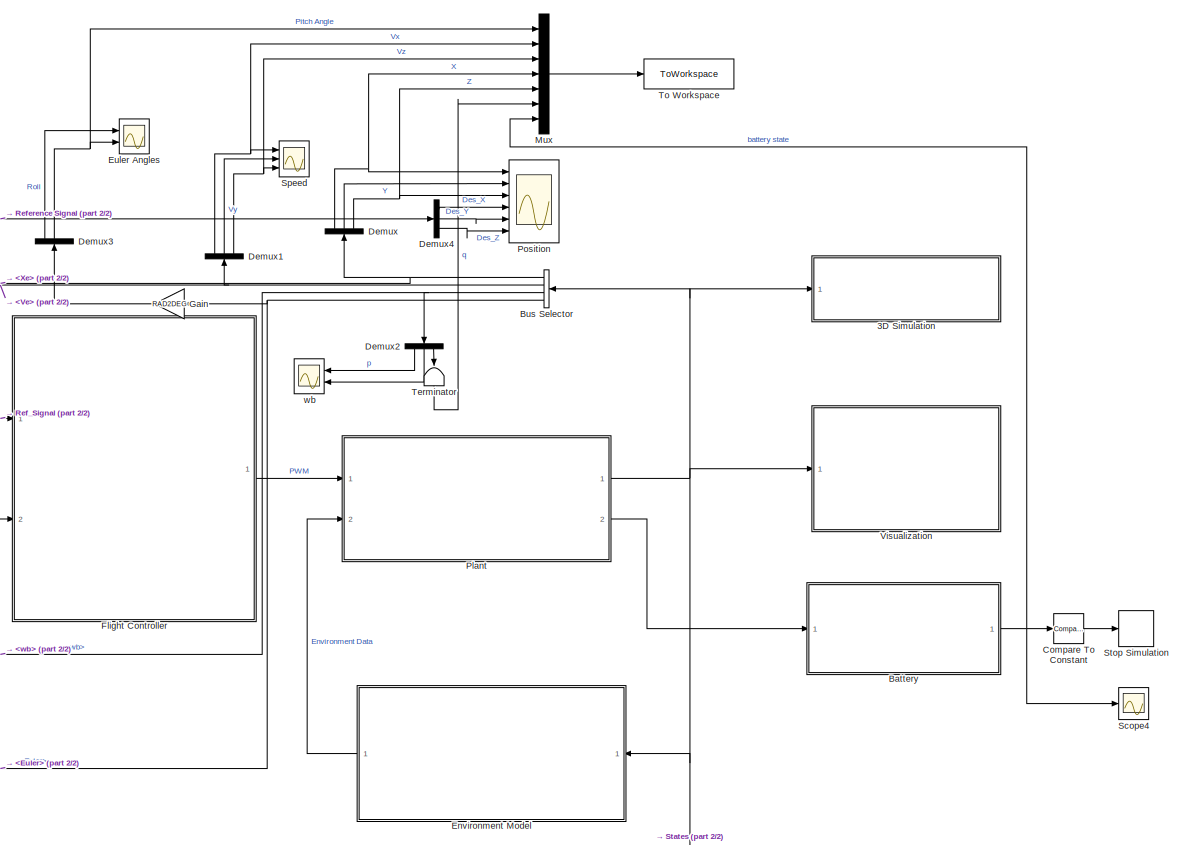
[diagram: root canvas - part 1/2, central region]
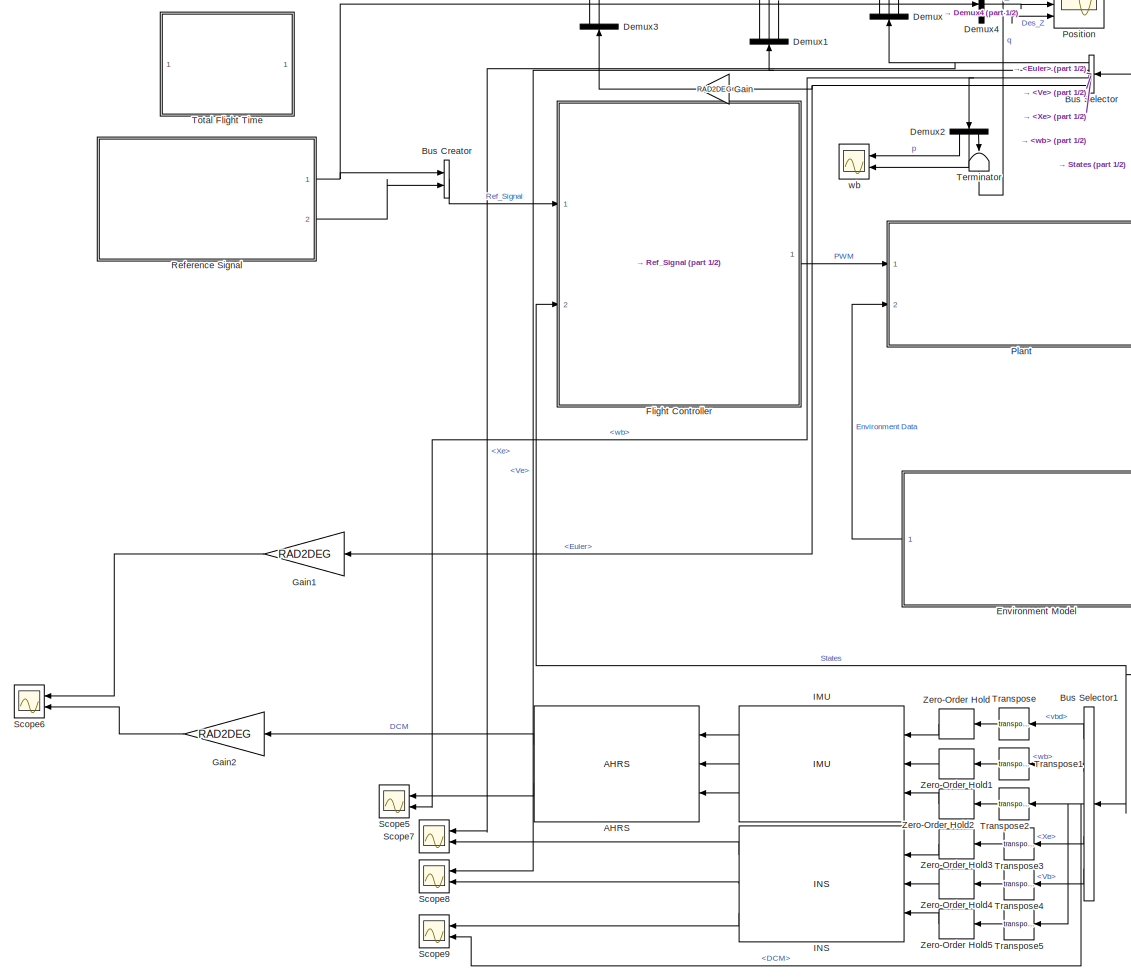
[diagram: root canvas - part 2/2, left side, full height]
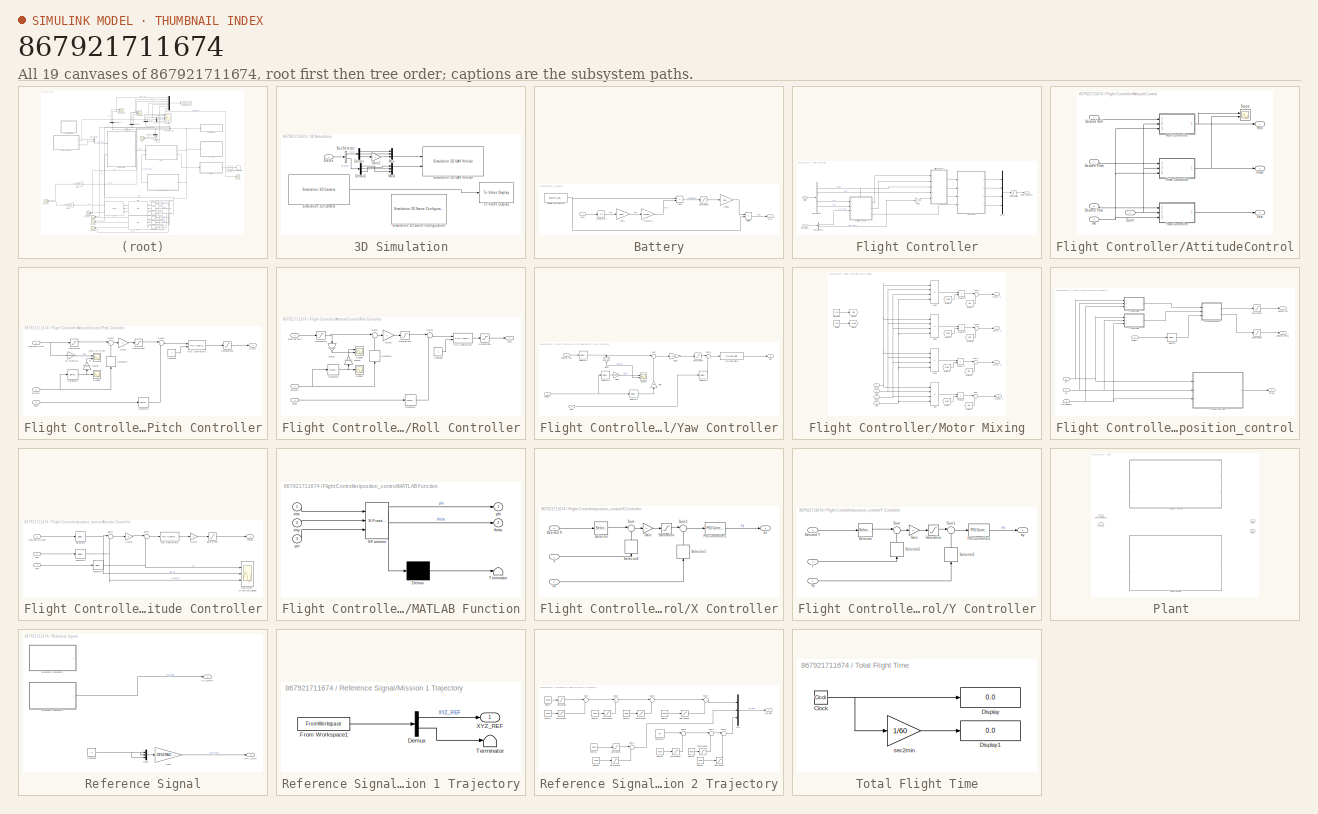
[diagram: thumbnail index - all 19 canvases of the model, root first then tree order]
MODEL slx_867921711674
KIND model
CONFIG AbsTol = auto
CONFIG EnableMultiTasking = off
CONFIG FixedStep = 0.005
CONFIG MaxStep = auto
CONFIG MinStep = auto
CONFIG RelTol = 1e-3
CONFIG SampleTimeConstraint = Unconstrained
CONFIG SolverName = FixedStepAuto
CONFIG StartTime = 0.0
CONFIG StopTime = 75
WORKSPACE source: mxarray member
WORKSPACE Trajectory: Simulink.Bus (value not decoded)
BLOCK [SubSystem] 3D Simulation
  Commented = on
  Ports = [1]
  RequestExecContextInheritance = off
BLOCK [BusSelector] 3D Simulation/Bus Selector
  OutputSignals = Xe,Euler
  Ports = [1, 2]
BLOCK [Demux] 3D Simulation/Demux
  Outputs = 3
  Ports = [1, 3]
BLOCK [Demux] 3D Simulation/Demux1
  Outputs = 3
  Ports = [1, 3]
BLOCK [Gain] 3D Simulation/Gain1
  Gain = -1
BLOCK [Mux] 3D Simulation/Mux
  DisplayOption = bar
  Inputs = 3
  Ports = [3, 1]
BLOCK [Mux] 3D Simulation/Mux1
  DisplayOption = bar
  Inputs = 3
  Ports = [3, 1]
BLOCK [Reference] 3D Simulation/Simulation 3D Camera  REF=sim3dcameralib/Simulation 3D Camera
  Ports = [0, 1]
  Priority = 1
  SourceBlock = sim3dcameralib/Simulation 3D Camera
  SourceProductBaseCode = DR,UV,VE
  SourceType = Simulation 3D Camera
BLOCK [Reference] 3D Simulation/Simulation 3D Scene Configuration  REF=sim3dlib/Simulation 3D Scene Configuration
  Ports = []
  Priority = 0
  SourceBlock = sim3dlib/Simulation 3D Scene Configuration
  SourceProductBaseCode = DR,UV,VE
  SourceType = Simulation 3D Scene Configuration
BLOCK [Reference] 3D Simulation/Simulation 3D UAV Vehicle  REF=uavsim3dlib/Simulation 3D UAV Vehicle
  Ports = [2]
  SourceBlock = uavsim3dlib/Simulation 3D UAV Vehicle
  SourceProductBaseCode = UV
  SourceType = Simulation 3D UAV Vehicle
BLOCK [Inport] 3D Simulation/States
BLOCK [Reference] 3D Simulation/To Video Display  REF=visionsinks/To Video Display
  Ports = [1]
  SourceBlock = visionsinks/To Video Display
  SourceProductBaseCode = VP
  SourceType = To Video Display
BLOCK [Reference] AHRS  REF=mspfiltlib/AHRS
  NameLocation = top
  Ports = [3, 2]
  SourceBlock = mspfiltlib/AHRS
  SourceProductBaseCode = TF,NV
  SourceType = fusion.simulink.ahrsfilter
BLOCK [SubSystem] Battery
  Ports = [1, 1]
  RequestExecContextInheritance = off
BLOCK [Constant] Battery/10000 mAh battery
  Value = battery_capacity
BLOCK [Gain] Battery/A2mA
  Gain = 1000
BLOCK [Sum] Battery/Add2
  IconShape = rectangular
  Inputs = +-
  Ports = [2, 1]
BLOCK [Inport] Battery/Amp
BLOCK [Product] Battery/Divide
  Inputs = */
  Ports = [2, 1]
BLOCK [Gain] Battery/Gain3
  Gain = 100
BLOCK [Integrator] Battery/Integrator1
  Ports = [1, 1]
BLOCK [Outport] Battery/SOC
BLOCK [Saturate] Battery/Saturation1
  LowerLimit = 0
  UpperLimit = 10000
BLOCK [Gain] Battery/mAs2mAh
  Gain = 1/3600
BLOCK [BusCreator] Bus Creator
  DisplayOption = bar
  InheritFromInputs = on
  Inputs = 2
  Ports = [2, 1]
BLOCK [BusSelector] Bus Selector
  NameLocation = top
  OutputSignals = Xe,Ve,wb,Euler
  Ports = [1, 4]
BLOCK [BusSelector] Bus Selector1
  NameLocation = top
  OutputSignals = vbd,wb,DCM,Xe,Vb
  Ports = [1, 5]
BLOCK [Reference] Compare To Constant  REF=simulink/Logic and Bit
Operations/Compare
To Constant
  Ports = [1, 1]
  SourceBlock = simulink/Logic and Bit\nOperations/Compare\nTo Constant
  SourceProductBaseCode = SL
  SourceType = Compare To Constant
BLOCK [Demux] Demux
  NameLocation = right
  Outputs = 3
  Ports = [1, 3]
BLOCK [Demux] Demux1
  NameLocation = right
  Outputs = 3
  Ports = [1, 3]
BLOCK [Demux] Demux2
  NameLocation = left
  Outputs = 3
  Ports = [1, 3]
BLOCK [Demux] Demux3
  NameLocation = right
  Outputs = 3
  Ports = [1, 3]
BLOCK [Demux] Demux4
  Outputs = 3
  Ports = [1, 3]
BLOCK [SubSystem] Environment Model
  NameLocation = top
  Ports = [1, 1]
  ReferencedSubsystem = Environment_Model
  RequestExecContextInheritance = off
BLOCK [Scope] Euler Angles
  Floating = off
  NumInputPorts = 2
  Ports = [2]
  ScopeSpecificationString = Simulink.scopes.TimeScopeBlockCfg('CurrentConfiguration', extmgr.ConfigurationSet(extmgr.Configuration('Core','General UI',true),extmgr.Configuration('Core','Source UI',true),extmgr.Configuration('Sources','WiredSimulink',true,'DataLoggingVariableName','ScopeData5'),extmgr.Configuration('Visuals','Time Domain',true,'SerializedDisplays',{struct('MinYLimReal','-22.55668','MaxYLimReal','19.10329','YL...<+2040ch>
BLOCK [SubSystem] Flight Controller
  Ports = [2, 1]
  RequestExecContextInheritance = off
BLOCK [SubSystem] Flight Controller/AttitudeControl
  Ports = [5, 3]
  RequestExecContextInheritance = off
BLOCK [Inport] Flight Controller/AttitudeControl/Desired Pitch
  Port = 2
BLOCK [Inport] Flight Controller/AttitudeControl/Desired Roll
BLOCK [Inport] Flight Controller/AttitudeControl/Desired Yaw
  Port = 5
BLOCK [Inport] Flight Controller/AttitudeControl/Euler
  Port = 3
BLOCK [Outport] Flight Controller/AttitudeControl/Pitch
  Port = 2
BLOCK [SubSystem] Flight Controller/AttitudeControl/Pitch Controller
  Ports = [3, 1]
  RequestExecContextInheritance = off
BLOCK [Inport] Flight Controller/AttitudeControl/Pitch Controller/<Euler>
  Port = 2
BLOCK [Inport] Flight Controller/AttitudeControl/Pitch Controller/<wb>
  Port = 3
BLOCK [Constant] Flight Controller/AttitudeControl/Pitch Controller/Constant
BLOCK [Scope] Flight Controller/AttitudeControl/Pitch Controller/Des//Act Pitch
  Floating = off
  NumInputPorts = 2
  Ports = [2]
  ScopeSpecificationString = Simulink.scopes.TimeScopeBlockCfg('CurrentConfiguration', extmgr.ConfigurationSet(extmgr.Configuration('Core','General UI',true),extmgr.Configuration('Core','Source UI',true),extmgr.Configuration('Sources','WiredSimulink',true,'DataLoggingVariableName','ScopeData6'),extmgr.Configuration('Visuals','Time Domain',true,'SerializedDisplays',{struct('MinYLimReal','-1.5','MaxYLimReal','13.50001','YLabelR...<+1437ch>
BLOCK [Inport] Flight Controller/AttitudeControl/Pitch Controller/Desired Pitch
BLOCK [Gain] Flight Controller/AttitudeControl/Pitch Controller/Gain2
  Gain = 7
BLOCK [Gain] Flight Controller/AttitudeControl/Pitch Controller/Gain3
  Gain = RAD2DEG
  NameLocation = right
BLOCK [Reference] Flight Controller/AttitudeControl/Pitch Controller/PID Controller1  REF=pid_lib/PID Controller
  Ports = [2, 1]
  SourceBlock = pid_lib/PID Controller
  SourceProductBaseCode = SL
  SourceType = PID 1dof
BLOCK [Outport] Flight Controller/AttitudeControl/Pitch Controller/Pitch
BLOCK [Gain] Flight Controller/AttitudeControl/Pitch Controller/RAD2DEG
  Gain = RAD2DEG
BLOCK [Saturate] Flight Controller/AttitudeControl/Pitch Controller/Saturation
  LowerLimit = -35*DEG2RAD
  UpperLimit = 35*DEG2RAD
BLOCK [Saturate] Flight Controller/AttitudeControl/Pitch Controller/Saturation1
  LowerLimit = -1
  UpperLimit = 1
BLOCK [Saturate] Flight Controller/AttitudeControl/Pitch Controller/Saturation4
  LowerLimit = -250
  UpperLimit = 250
BLOCK [Scope] Flight Controller/AttitudeControl/Pitch Controller/Scope1
  Floating = off
  NumInputPorts = 1
  Ports = [1]
  ScopeSpecificationString = Simulink.scopes.TimeScopeBlockCfg('CurrentConfiguration', extmgr.ConfigurationSet(extmgr.Configuration('Core','General UI',true),extmgr.Configuration('Core','Source UI',true),extmgr.Configuration('Sources','WiredSimulink',true,'DataLoggingVariableName','ScopeData1'),extmgr.Configuration('Visuals','Time Domain',true,'SerializedDisplays',{struct('MinYLimReal','-0.000000000000000042','MaxYLimReal','0...<+1546ch>
BLOCK [Selector] Flight Controller/AttitudeControl/Pitch Controller/Selector2
  IndexOptions = Index vector (dialog)
  Indices = [2]
  InputPortWidth = 3
  OutputSizes = 1
  Ports = [1, 1]
BLOCK [Selector] Flight Controller/AttitudeControl/Pitch Controller/Selector3
  IndexOptions = Index vector (dialog)
  Indices = [2]
  InputPortWidth = 3
  OutputSizes = 1
  Ports = [1, 1]
BLOCK [Selector] Flight Controller/AttitudeControl/Pitch Controller/Selector4
  IndexOptions = Index vector (dialog)
  Indices = [2]
  InputPortWidth = 3
  NameLocation = right
  OutputSizes = 1
  Ports = [1, 1]
BLOCK [Sum] Flight Controller/AttitudeControl/Pitch Controller/Sum2
  Inputs = |+-
  Ports = [2, 1]
BLOCK [Sum] Flight Controller/AttitudeControl/Pitch Controller/Sum3
  Inputs = |+-
  Ports = [2, 1]
BLOCK [Outport] Flight Controller/AttitudeControl/Roll
BLOCK [SubSystem] Flight Controller/AttitudeControl/Roll Controller
  Ports = [3, 1]
  RequestExecContextInheritance = off
BLOCK [Inport] Flight Controller/AttitudeControl/Roll Controller/<Euler>
  Port = 2
BLOCK [Inport] Flight Controller/AttitudeControl/Roll Controller/<wb>
  Port = 3
BLOCK [Constant] Flight Controller/AttitudeControl/Roll Controller/Constant
BLOCK [Inport] Flight Controller/AttitudeControl/Roll Controller/Desired Roll
BLOCK [Gain] Flight Controller/AttitudeControl/Roll Controller/Gain1
  Gain = RAD2DEG
  NameLocation = left
BLOCK [Gain] Flight Controller/AttitudeControl/Roll Controller/Gain2
  Gain = 7
BLOCK [Gain] Flight Controller/AttitudeControl/Roll Controller/Gain3
  Gain = RAD2DEG
  NameLocation = right
BLOCK [Reference] Flight Controller/AttitudeControl/Roll Controller/PID Controller1  REF=pid_lib/PID Controller
  Ports = [2, 1]
  SourceBlock = pid_lib/PID Controller
  SourceProductBaseCode = SL
  SourceType = PID 1dof
BLOCK [Outport] Flight Controller/AttitudeControl/Roll Controller/Roll
BLOCK [Saturate] Flight Controller/AttitudeControl/Roll Controller/Saturation
  LowerLimit = -35*DEG2RAD
  UpperLimit = 35*DEG2RAD
BLOCK [Saturate] Flight Controller/AttitudeControl/Roll Controller/Saturation1
  LowerLimit = -1
  UpperLimit = 1
BLOCK [Saturate] Flight Controller/AttitudeControl/Roll Controller/Saturation4
  LowerLimit = -250
  UpperLimit = 250
BLOCK [Scope] Flight Controller/AttitudeControl/Roll Controller/Scope1
  Floating = off
  NumInputPorts = 1
  Ports = [1]
  ScopeSpecificationString = Simulink.scopes.TimeScopeBlockCfg('CurrentConfiguration', extmgr.ConfigurationSet(extmgr.Configuration('Core','General UI',true),extmgr.Configuration('Core','Source UI',true),extmgr.Configuration('Sources','WiredSimulink',true,'DataLoggingVariableName','ScopeData1'),extmgr.Configuration('Visuals','Time Domain',true,'SerializedDisplays',{struct('MinYLimReal','-0.01856','MaxYLimReal','0.01527','YLab...<+1442ch>
BLOCK [Scope] Flight Controller/AttitudeControl/Roll Controller/Scope2
  Floating = off
  NumInputPorts = 2
  Ports = [2]
  ScopeSpecificationString = Simulink.scopes.TimeScopeBlockCfg('CurrentConfiguration', extmgr.ConfigurationSet(extmgr.Configuration('Core','General UI',true),extmgr.Configuration('Core','Source UI',true),extmgr.Configuration('Sources','WiredSimulink',true,'DataLoggingVariableName','ScopeData6'),extmgr.Configuration('Visuals','Time Domain',true,'SerializedDisplays',{struct('MinYLimReal','-1.50563','MaxYLimReal','13.55069','YLa...<+1499ch>
BLOCK [Selector] Flight Controller/AttitudeControl/Roll Controller/Selector2
  IndexOptions = Index vector (dialog)
  Indices = [1]
  InputPortWidth = 3
  OutputSizes = 1
  Ports = [1, 1]
BLOCK [Selector] Flight Controller/AttitudeControl/Roll Controller/Selector3
  IndexOptions = Index vector (dialog)
  Indices = [1]
  InputPortWidth = 3
  OutputSizes = 1
  Ports = [1, 1]
BLOCK [Selector] Flight Controller/AttitudeControl/Roll Controller/Selector4
  IndexOptions = Index vector (dialog)
  Indices = [1]
  InputPortWidth = 3
  NameLocation = right
  OutputSizes = 1
  Ports = [1, 1]
BLOCK [Sum] Flight Controller/AttitudeControl/Roll Controller/Sum2
  Inputs = |+-
  Ports = [2, 1]
BLOCK [Sum] Flight Controller/AttitudeControl/Roll Controller/Sum3
  Inputs = |+-
  Ports = [2, 1]
BLOCK [Scope] Flight Controller/AttitudeControl/Scope
  Floating = off
  NumInputPorts = 2
  Ports = [2]
  ScopeSpecificationString = Simulink.scopes.TimeScopeBlockCfg('CurrentConfiguration', extmgr.ConfigurationSet(extmgr.Configuration('Core','General UI',true),extmgr.Configuration('Core','Source UI',true),extmgr.Configuration('Sources','WiredSimulink',true,'DataLoggingVariableName','ScopeData5'),extmgr.Configuration('Visuals','Time Domain',true,'SerializedDisplays',{struct('MinYLimReal','-1.25','MaxYLimReal','1.25','YLabelReal...<+1430ch>
BLOCK [Outport] Flight Controller/AttitudeControl/Yaw
  Port = 3
BLOCK [SubSystem] Flight Controller/AttitudeControl/Yaw Controller
  Ports = [3, 1]
  RequestExecContextInheritance = off
BLOCK [Inport] Flight Controller/AttitudeControl/Yaw Controller/<Euler>
  Port = 2
BLOCK [Inport] Flight Controller/AttitudeControl/Yaw Controller/<wb>
  Port = 3
BLOCK [Inport] Flight Controller/AttitudeControl/Yaw Controller/Desired Yaw
BLOCK [Gain] Flight Controller/AttitudeControl/Yaw Controller/Gain
  Gain = 1/4
  NameLocation = right
BLOCK [Gain] Flight Controller/AttitudeControl/Yaw Controller/Gain1
  Gain = 3.25
BLOCK [Gain] Flight Controller/AttitudeControl/Yaw Controller/Gain3
  Gain = RAD2DEG
BLOCK [Gain] Flight Controller/AttitudeControl/Yaw Controller/Gain4
  Gain = RAD2DEG
  NameLocation = left
BLOCK [Reference] Flight Controller/AttitudeControl/Yaw Controller/PID Controller1  REF=pid_lib/PID Controller
  Ports = [1, 1]
  SourceBlock = pid_lib/PID Controller
  SourceProductBaseCode = SL
  SourceType = PID 1dof
BLOCK [Saturate] Flight Controller/AttitudeControl/Yaw Controller/Saturation4
  LowerLimit = -250
  UpperLimit = 250
BLOCK [Scope] Flight Controller/AttitudeControl/Yaw Controller/Scope
  Floating = off
  NumInputPorts = 2
  Ports = [2]
  ScopeSpecificationString = Simulink.scopes.TimeScopeBlockCfg('CurrentConfiguration', extmgr.ConfigurationSet(extmgr.Configuration('Core','General UI',true),extmgr.Configuration('Core','Source UI',true),extmgr.Configuration('Sources','WiredSimulink',true,'DataLoggingVariableName','ScopeData1'),extmgr.Configuration('Visuals','Time Domain',true,'SerializedDisplays',{struct('MinYLimReal','-224.8492','MaxYLimReal','224.93232','Y...<+2071ch>
BLOCK [Selector] Flight Controller/AttitudeControl/Yaw Controller/Selector1
  IndexOptions = Index vector (dialog)
  Indices = [3]
  InputPortWidth = 3
  OutputSizes = 1
  Ports = [1, 1]
BLOCK [Selector] Flight Controller/AttitudeControl/Yaw Controller/Selector2
  IndexOptions = Index vector (dialog)
  Indices = [3]
  InputPortWidth = 3
  OutputSizes = 1
  Ports = [1, 1]
BLOCK [Selector] Flight Controller/AttitudeControl/Yaw Controller/Selector3
  IndexOptions = Index vector (dialog)
  Indices = [3]
  InputPortWidth = 3
  OutputSizes = 1
  Ports = [1, 1]
BLOCK [Selector] Flight Controller/AttitudeControl/Yaw Controller/Selector4
  IndexOptions = Index vector (dialog)
  Indices = [3]
  InputPortWidth = 3
  OutputSizes = 1
  Ports = [1, 1]
BLOCK [Sum] Flight Controller/AttitudeControl/Yaw Controller/Sum
  Inputs = |+-
  Ports = [2, 1]
BLOCK [Sum] Flight Controller/AttitudeControl/Yaw Controller/Sum3
  Inputs = |+-
  Ports = [2, 1]
BLOCK [Outport] Flight Controller/AttitudeControl/Yaw Controller/Yaw
BLOCK [Inport] Flight Controller/AttitudeControl/wb
  Port = 4
BLOCK [BusSelector] Flight Controller/Bus Selector
  OutputSignals = Euler,wb,Xe,Ve
  Ports = [1, 4]
BLOCK [BusSelector] Flight Controller/Bus Selector2
  OutputSignals = XYZ_REF,RPY_REF
  Ports = [1, 2]
BLOCK [Gain] Flight Controller/Gain2
BLOCK [Outport] Flight Controller/Motor Commands
  VectorParamsAs1DForOutWhenUnconnected = off
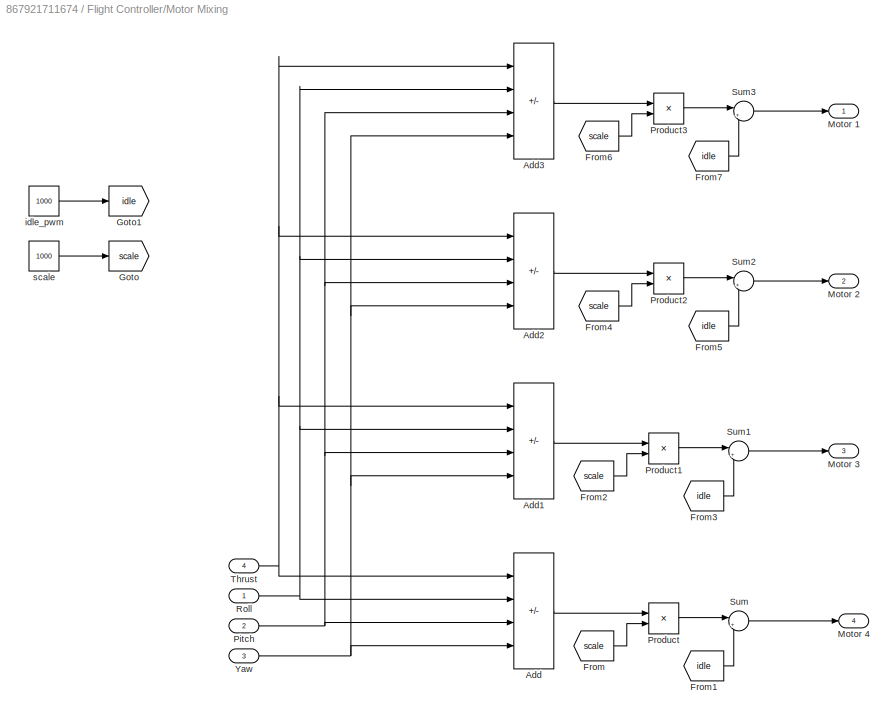
BLOCK [SubSystem] Flight Controller/Motor Mixing
  Ports = [4, 4]
  RequestExecContextInheritance = off
BLOCK [Sum] Flight Controller/Motor Mixing/Add
  IconShape = rectangular
  Inputs = +-+-
  Ports = [4, 1]
BLOCK [Sum] Flight Controller/Motor Mixing/Add1
  IconShape = rectangular
  Inputs = +++-
  Ports = [4, 1]
BLOCK [Sum] Flight Controller/Motor Mixing/Add2
  IconShape = rectangular
  Inputs = ++-+
  Ports = [4, 1]
BLOCK [Sum] Flight Controller/Motor Mixing/Add3
  IconShape = rectangular
  Inputs = +-++
  Ports = [4, 1]
BLOCK [From] Flight Controller/Motor Mixing/From
  GotoTag = scale
BLOCK [From] Flight Controller/Motor Mixing/From1
  GotoTag = idle
BLOCK [From] Flight Controller/Motor Mixing/From2
  GotoTag = scale
BLOCK [From] Flight Controller/Motor Mixing/From3
  GotoTag = idle
BLOCK [From] Flight Controller/Motor Mixing/From4
  GotoTag = scale
BLOCK [From] Flight Controller/Motor Mixing/From5
  GotoTag = idle
BLOCK [From] Flight Controller/Motor Mixing/From6
  GotoTag = scale
BLOCK [From] Flight Controller/Motor Mixing/From7
  GotoTag = idle
BLOCK [Goto] Flight Controller/Motor Mixing/Goto
  GotoTag = scale
BLOCK [Goto] Flight Controller/Motor Mixing/Goto1
  GotoTag = idle
BLOCK [Outport] Flight Controller/Motor Mixing/Motor 1
BLOCK [Outport] Flight Controller/Motor Mixing/Motor 2
  Port = 2
BLOCK [Outport] Flight Controller/Motor Mixing/Motor 3
  Port = 3
BLOCK [Outport] Flight Controller/Motor Mixing/Motor 4
  Port = 4
BLOCK [Inport] Flight Controller/Motor Mixing/Pitch
  Port = 2
BLOCK [Product] Flight Controller/Motor Mixing/Product
  Ports = [2, 1]
BLOCK [Product] Flight Controller/Motor Mixing/Product1
  Ports = [2, 1]
BLOCK [Product] Flight Controller/Motor Mixing/Product2
  Ports = [2, 1]
BLOCK [Product] Flight Controller/Motor Mixing/Product3
  Ports = [2, 1]
BLOCK [Inport] Flight Controller/Motor Mixing/Roll
BLOCK [Sum] Flight Controller/Motor Mixing/Sum
  Inputs = |++
  Ports = [2, 1]
BLOCK [Sum] Flight Controller/Motor Mixing/Sum1
  Inputs = |++
  Ports = [2, 1]
BLOCK [Sum] Flight Controller/Motor Mixing/Sum2
  Inputs = |++
  Ports = [2, 1]
BLOCK [Sum] Flight Controller/Motor Mixing/Sum3
  Inputs = |++
  Ports = [2, 1]
BLOCK [Inport] Flight Controller/Motor Mixing/Thrust
  Port = 4
BLOCK [Inport] Flight Controller/Motor Mixing/Yaw
  Port = 3
BLOCK [Constant] Flight Controller/Motor Mixing/idle_pwm
  Value = 1000
BLOCK [Constant] Flight Controller/Motor Mixing/scale
  Value = 1000
BLOCK [Mux] Flight Controller/Mux12
  DisplayOption = bar
  Ports = [4, 1]
BLOCK [Saturate] Flight Controller/Output_Limits1
  LowerLimit = 1000
  UpperLimit = 2000
BLOCK [Inport] Flight Controller/Ref_Signal
BLOCK [Inport] Flight Controller/States
  Port = 2
BLOCK [SubSystem] Flight Controller/position_control
  PortSchema = {"entries":[{"content":{"sides":[{"content":{"connectorIds":["In1","In2","In3"]},"type":"ConnectorPlacement.EquallySpacedRectSide","uuid":"d0109165-871e-4335-ab21-5be3cafcc9e1"},{"content":{"connectorIds":["Out1","Out2","Out3"],"side":"RIGHT"},"type":"ConnectorPlacement.EquallySpacedRectSide","uuid":"3148bff2-fe34-4d74-8ac1-0defe58f08c1"},{"content":{"connectorIds":["In4"],"side":"TOP"},"type":"Co...<+415ch>
  Ports = [4, 3]
  RequestExecContextInheritance = off
BLOCK [Inport] Flight Controller/position_control/<Euler>
  Port = 4
BLOCK [SubSystem] Flight Controller/position_control/Altitude Controller
  Ports = [3, 1]
  RequestExecContextInheritance = off
BLOCK [Inport] Flight Controller/position_control/Altitude Controller/<Ve>
  Port = 2
BLOCK [Inport] Flight Controller/position_control/Altitude Controller/<Xe>
BLOCK [Scope] Flight Controller/position_control/Altitude Controller/Des//Actual_Alt-Vertical_Speed
  Floating = off
  NumInputPorts = 3
  Ports = [3]
  ScopeSpecificationString = Simulink.scopes.TimeScopeBlockCfg('CurrentConfiguration', extmgr.ConfigurationSet(extmgr.Configuration('Core','General UI',true),extmgr.Configuration('Core','Source UI',true),extmgr.Configuration('Sources','WiredSimulink',true,'DataLoggingVariableName','ScopeData1'),extmgr.Configuration('Visuals','Time Domain',true,'SerializedDisplays',{struct('MinYLimReal','-7.62636','MaxYLimReal','0.90197','YLab...<+2091ch>
BLOCK [Inport] Flight Controller/position_control/Altitude Controller/Desired Altitude
  Port = 3
BLOCK [Gain] Flight Controller/position_control/Altitude Controller/Gain2
  Gain = 4
BLOCK [Gain] Flight Controller/position_control/Altitude Controller/Gain3
  Gain = -1
BLOCK [Reference] Flight Controller/position_control/Altitude Controller/PID Controller2  REF=pid_lib/PID Controller
  Ports = [1, 1]
  SourceBlock = pid_lib/PID Controller
  SourceProductBaseCode = SL
  SourceType = PID 1dof
BLOCK [Saturate] Flight Controller/position_control/Altitude Controller/Saturation2
  LowerLimit = 0
  UpperLimit = 1
BLOCK [Selector] Flight Controller/position_control/Altitude Controller/Selector3
  IndexOptions = Index vector (dialog)
  Indices = [3]
  InputPortWidth = 3
  OutputSizes = 1
  Ports = [1, 1]
BLOCK [Selector] Flight Controller/position_control/Altitude Controller/Selector4
  IndexOptions = Index vector (dialog)
  Indices = [3]
  InputPortWidth = 3
  OutputSizes = 1
  Ports = [1, 1]
BLOCK [Selector] Flight Controller/position_control/Altitude Controller/Selector5
  IndexOptions = Index vector (dialog)
  Indices = [3]
  InputPortWidth = 3
  OutputSizes = 1
  Ports = [1, 1]
BLOCK [Sum] Flight Controller/position_control/Altitude Controller/Sum2
  Inputs = |+-
  Ports = [2, 1]
BLOCK [Sum] Flight Controller/position_control/Altitude Controller/Sum3
  Inputs = |+-
  Ports = [2, 1]
BLOCK [Outport] Flight Controller/position_control/Altitude Controller/Thrust
BLOCK [Outport] Flight Controller/position_control/Desired Phi
BLOCK [Outport] Flight Controller/position_control/Desired Theta
  Port = 2
BLOCK [SubSystem] Flight Controller/position_control/MATLAB Function
  ErrorFcn = Stateflow.Translate.translate
  PermitHierarchicalResolution = ExplicitOnly
  Ports = [3, 2]
  RequestExecContextInheritance = off
  SFBlockType = MATLAB Function
  TreatAsAtomicUnit = on
BLOCK [Demux] Flight Controller/position_control/MATLAB Function/ Demux 
  Outputs = 1
  Ports = [1, 1]
BLOCK [S-Function] Flight Controller/position_control/MATLAB Function/ SFunction 
  EnableBusSupport = on
  FunctionName = sf_sfun
  PortCounts = [3 3]
  Ports = [3, 3]
  SFcnIsStateOwnerBlock = off
  SFunctionDeploymentMode = off
  Tag = Stateflow S-Function 9
BLOCK [Terminator] Flight Controller/position_control/MATLAB Function/ Terminator 
BLOCK [Inport] Flight Controller/position_control/MATLAB Function/eax
BLOCK [Inport] Flight Controller/position_control/MATLAB Function/eay
  Port = 2
BLOCK [Outport] Flight Controller/position_control/MATLAB Function/phi
  VectorParamsAs1DForOutWhenUnconnected = off
BLOCK [Inport] Flight Controller/position_control/MATLAB Function/psi
  Port = 3
BLOCK [Outport] Flight Controller/position_control/MATLAB Function/theta
  Port = 2
  VectorParamsAs1DForOutWhenUnconnected = off
BLOCK [Saturate] Flight Controller/position_control/Saturation1
  LowerLimit = -30*DEG2RAD
  UpperLimit = 30*DEG2RAD
BLOCK [Saturate] Flight Controller/position_control/Saturation2
  LowerLimit = -30*DEG2RAD
  UpperLimit = 30*DEG2RAD
BLOCK [Selector] Flight Controller/position_control/Selector
  IndexOptions = Index vector (dialog)
  Indices = 3
  InputPortWidth = 3
  OutputSizes = 1
  Ports = [1, 1]
BLOCK [Outport] Flight Controller/position_control/Thrust
  Port = 3
  VectorParamsAs1DForOutWhenUnconnected = off
BLOCK [Inport] Flight Controller/position_control/Ve
  Port = 2
BLOCK [SubSystem] Flight Controller/position_control/X Controller
  Ports = [3, 1]
  RequestExecContextInheritance = off
BLOCK [Inport] Flight Controller/position_control/X Controller/Desired X
  Port = 3
BLOCK [Gain] Flight Controller/position_control/X Controller/Gain
BLOCK [Reference] Flight Controller/position_control/X Controller/PID Controller1  REF=pid_lib/PID Controller
  Ports = [1, 1]
  SourceBlock = pid_lib/PID Controller
  SourceProductBaseCode = SL
  SourceType = PID 1dof
BLOCK [Saturate] Flight Controller/position_control/X Controller/Saturation
  LowerLimit = -8
  UpperLimit = 8
BLOCK [Selector] Flight Controller/position_control/X Controller/Selector
  IndexOptions = Index vector (dialog)
  Indices = 1
  InputPortWidth = 3
  OutputSizes = 1
  Ports = [1, 1]
BLOCK [Selector] Flight Controller/position_control/X Controller/Selector1
  IndexOptions = Index vector (dialog)
  Indices = 1
  InputPortWidth = 3
  NameLocation = right
  OutputSizes = 1
  Ports = [1, 1]
BLOCK [Selector] Flight Controller/position_control/X Controller/Selector2
  IndexOptions = Index vector (dialog)
  Indices = 1
  InputPortWidth = 3
  NameLocation = right
  OutputSizes = 1
  Ports = [1, 1]
BLOCK [Sum] Flight Controller/position_control/X Controller/Sum
  Inputs = |+-
  Ports = [2, 1]
BLOCK [Sum] Flight Controller/position_control/X Controller/Sum1
  Inputs = |+-
  Ports = [2, 1]
BLOCK [Inport] Flight Controller/position_control/X Controller/Vx
  Port = 2
BLOCK [Inport] Flight Controller/position_control/X Controller/X
BLOCK [Outport] Flight Controller/position_control/X Controller/ax
BLOCK [Inport] Flight Controller/position_control/XYZ Desired
  Port = 3
BLOCK [Inport] Flight Controller/position_control/Xe
BLOCK [SubSystem] Flight Controller/position_control/Y Controller
  Ports = [3, 1]
  RequestExecContextInheritance = off
BLOCK [Inport] Flight Controller/position_control/Y Controller/Desired Y
  Port = 3
BLOCK [Gain] Flight Controller/position_control/Y Controller/Gain
BLOCK [Reference] Flight Controller/position_control/Y Controller/PID Controller1  REF=pid_lib/PID Controller
  Ports = [1, 1]
  SourceBlock = pid_lib/PID Controller
  SourceProductBaseCode = SL
  SourceType = PID 1dof
BLOCK [Saturate] Flight Controller/position_control/Y Controller/Saturation
  LowerLimit = -8
  UpperLimit = 8
BLOCK [Selector] Flight Controller/position_control/Y Controller/Selector
  IndexOptions = Index vector (dialog)
  Indices = 2
  InputPortWidth = 3
  OutputSizes = 1
  Ports = [1, 1]
BLOCK [Selector] Flight Controller/position_control/Y Controller/Selector2
  IndexOptions = Index vector (dialog)
  Indices = 2
  InputPortWidth = 3
  NameLocation = right
  OutputSizes = 1
  Ports = [1, 1]
BLOCK [Selector] Flight Controller/position_control/Y Controller/Selector5
  IndexOptions = Index vector (dialog)
  Indices = 2
  InputPortWidth = 3
  NameLocation = right
  OutputSizes = 1
  Ports = [1, 1]
BLOCK [Sum] Flight Controller/position_control/Y Controller/Sum
  Inputs = |+-
  Ports = [2, 1]
BLOCK [Sum] Flight Controller/position_control/Y Controller/Sum1
  Inputs = |+-
  Ports = [2, 1]
BLOCK [Inport] Flight Controller/position_control/Y Controller/Vy
  Port = 2
BLOCK [Inport] Flight Controller/position_control/Y Controller/Y
BLOCK [Outport] Flight Controller/position_control/Y Controller/ay
BLOCK [Gain] Gain
  Gain = RAD2DEG
  NameLocation = top
BLOCK [Gain] Gain1
  Gain = RAD2DEG
  NameLocation = top
BLOCK [Gain] Gain2
  Gain = RAD2DEG
  NameLocation = top
BLOCK [Reference] IMU  REF=mspsensorlib/IMU
  NameLocation = top
  Ports = [3, 3]
  SourceBlock = mspsensorlib/IMU
  SourceProductBaseCode = TF,NV
  SourceType = fusion.simulink.imuSensor
BLOCK [Reference] INS  REF=mspsensorlib/INS
  NameLocation = top
  Ports = [3, 3]
  SourceBlock = mspsensorlib/INS
  SourceProductBaseCode = TF,NV
  SourceType = fusion.internal.simulink.insSensor
BLOCK [Mux] Mux
  DisplayOption = bar
  Inputs = 7
  Ports = [7, 1]
BLOCK [SubSystem] Plant 
  Ports = [2, 2]
  RequestExecContextInheritance = off
  Variant = on
  VariantControl = Choice
BLOCK [Outport] Plant /Amper
  Port = 2
BLOCK [Inport] Plant /Env_Bus
  Port = 2
BLOCK [SubSystem] Plant /Linear Airframe
  Ports = [2, 1]
  ReferencedSubsystem = Linear_Airframe
  RequestExecContextInheritance = off
  VariantControl = VSS_Airframe_Linear
BLOCK [Inport] Plant /Motor Commands
BLOCK [SubSystem] Plant /Nonlinear Airframe 
  Ports = [2, 2]
  ReferencedSubsystem = Nonlinear_Plant
  RequestExecContextInheritance = off
  VariantControl = VSS_Airframe_Nonlinear
BLOCK [Outport] Plant /States
BLOCK [Scope] Position
  Floating = off
  NumInputPorts = 6
  Ports = [6]
  ScopeSpecificationString = Simulink.scopes.TimeScopeBlockCfg('CurrentConfiguration', extmgr.ConfigurationSet(extmgr.Configuration('Core','General UI',true),extmgr.Configuration('Core','Source UI',true),extmgr.Configuration('Sources','WiredSimulink',true,'DataLoggingVariableName','ScopeData1'),extmgr.Configuration('Visuals','Time Domain',true,'SerializedDisplays',{struct('MinYLimReal','-19.42786','MaxYLimReal','25.01777','YL...<+4866ch>
BLOCK [SubSystem] Reference Signal
  Ports = [0, 2]
  RequestExecContextInheritance = off
BLOCK [Constant] Reference Signal/Constant
  Value = 0
BLOCK [Gain] Reference Signal/Gain
  Gain = DEG2RAD*0
BLOCK [SubSystem] Reference Signal/Mission 1 Trajectory
  Ports = [0, 1]
  RequestExecContextInheritance = off
BLOCK [Demux] Reference Signal/Mission 1 Trajectory/Demux
  Outputs = 2
  Ports = [1, 2]
BLOCK [FromWorkspace] Reference Signal/Mission 1 Trajectory/From Workspace1
  VariableName = mission1_trajectory
BLOCK [Terminator] Reference Signal/Mission 1 Trajectory/Terminator
BLOCK [Outport] Reference Signal/Mission 1 Trajectory/XYZ_REF
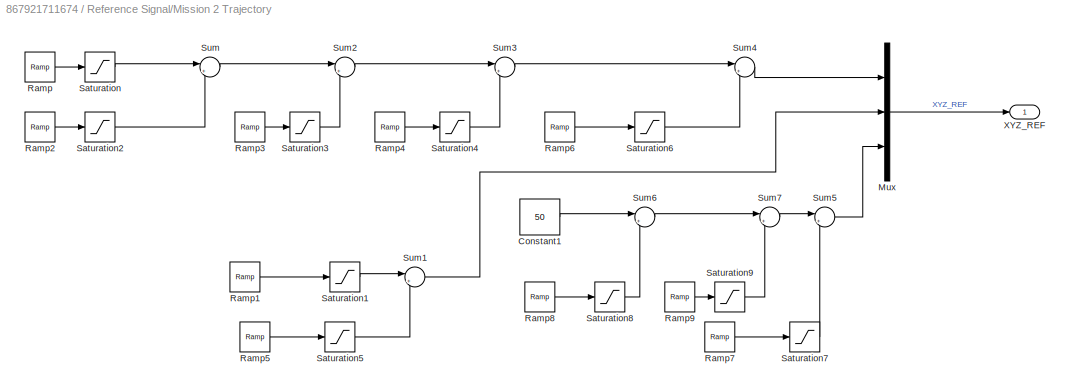
BLOCK [SubSystem] Reference Signal/Mission 2 Trajectory
  Ports = [0, 1]
  RequestExecContextInheritance = off
BLOCK [Constant] Reference Signal/Mission 2 Trajectory/Constant1
  Value = 50
BLOCK [Mux] Reference Signal/Mission 2 Trajectory/Mux
  DisplayOption = bar
  Inputs = 3
  Ports = [3, 1]
BLOCK [Reference] Reference Signal/Mission 2 Trajectory/Ramp  REF=simulink/Sources/Ramp
  Ports = [0, 1]
  SourceBlock = simulink/Sources/Ramp
  SourceProductBaseCode = SL
  SourceType = Ramp
BLOCK [Reference] Reference Signal/Mission 2 Trajectory/Ramp1  REF=simulink/Sources/Ramp
  Ports = [0, 1]
  SourceBlock = simulink/Sources/Ramp
  SourceProductBaseCode = SL
  SourceType = Ramp
BLOCK [Reference] Reference Signal/Mission 2 Trajectory/Ramp2  REF=simulink/Sources/Ramp
  Ports = [0, 1]
  SourceBlock = simulink/Sources/Ramp
  SourceProductBaseCode = SL
  SourceType = Ramp
BLOCK [Reference] Reference Signal/Mission 2 Trajectory/Ramp3  REF=simulink/Sources/Ramp
  Ports = [0, 1]
  SourceBlock = simulink/Sources/Ramp
  SourceProductBaseCode = SL
  SourceType = Ramp
BLOCK [Reference] Reference Signal/Mission 2 Trajectory/Ramp4  REF=simulink/Sources/Ramp
  Ports = [0, 1]
  SourceBlock = simulink/Sources/Ramp
  SourceProductBaseCode = SL
  SourceType = Ramp
BLOCK [Reference] Reference Signal/Mission 2 Trajectory/Ramp5  REF=simulink/Sources/Ramp
  Ports = [0, 1]
  SourceBlock = simulink/Sources/Ramp
  SourceProductBaseCode = SL
  SourceType = Ramp
BLOCK [Reference] Reference Signal/Mission 2 Trajectory/Ramp6  REF=simulink/Sources/Ramp
  Ports = [0, 1]
  SourceBlock = simulink/Sources/Ramp
  SourceProductBaseCode = SL
  SourceType = Ramp
BLOCK [Reference] Reference Signal/Mission 2 Trajectory/Ramp7  REF=simulink/Sources/Ramp
  Ports = [0, 1]
  SourceBlock = simulink/Sources/Ramp
  SourceProductBaseCode = SL
  SourceType = Ramp
BLOCK [Reference] Reference Signal/Mission 2 Trajectory/Ramp8  REF=simulink/Sources/Ramp
  Ports = [0, 1]
  SourceBlock = simulink/Sources/Ramp
  SourceProductBaseCode = SL
  SourceType = Ramp
BLOCK [Reference] Reference Signal/Mission 2 Trajectory/Ramp9  REF=simulink/Sources/Ramp
  Ports = [0, 1]
  SourceBlock = simulink/Sources/Ramp
  SourceProductBaseCode = SL
  SourceType = Ramp
BLOCK [Saturate] Reference Signal/Mission 2 Trajectory/Saturation
  LowerLimit = 0
  UpperLimit = 25
BLOCK [Saturate] Reference Signal/Mission 2 Trajectory/Saturation1
  LowerLimit = 0
  UpperLimit = 25
BLOCK [Saturate] Reference Signal/Mission 2 Trajectory/Saturation2
  LowerLimit = -10
  UpperLimit = 0
BLOCK [Saturate] Reference Signal/Mission 2 Trajectory/Saturation3
  LowerLimit = -15
  UpperLimit = 0
BLOCK [Saturate] Reference Signal/Mission 2 Trajectory/Saturation4
  LowerLimit = -25
  UpperLimit = 0
BLOCK [Saturate] Reference Signal/Mission 2 Trajectory/Saturation5
  LowerLimit = -25
  UpperLimit = 25
BLOCK [Saturate] Reference Signal/Mission 2 Trajectory/Saturation6
  LowerLimit = 0
  UpperLimit = 25
BLOCK [Saturate] Reference Signal/Mission 2 Trajectory/Saturation7
  LowerLimit = -49
  UpperLimit = 0
BLOCK [Saturate] Reference Signal/Mission 2 Trajectory/Saturation8
  LowerLimit = -45
  UpperLimit = 0
BLOCK [Saturate] Reference Signal/Mission 2 Trajectory/Saturation9
  LowerLimit = 0
  UpperLimit = 45
BLOCK [Sum] Reference Signal/Mission 2 Trajectory/Sum
  Inputs = |++
  Ports = [2, 1]
BLOCK [Sum] Reference Signal/Mission 2 Trajectory/Sum1
  Inputs = |++
  Ports = [2, 1]
BLOCK [Sum] Reference Signal/Mission 2 Trajectory/Sum2
  Inputs = |++
  Ports = [2, 1]
BLOCK [Sum] Reference Signal/Mission 2 Trajectory/Sum3
  Inputs = |++
  Ports = [2, 1]
BLOCK [Sum] Reference Signal/Mission 2 Trajectory/Sum4
  Inputs = |++
  Ports = [2, 1]
BLOCK [Sum] Reference Signal/Mission 2 Trajectory/Sum5
  Inputs = |++
  Ports = [2, 1]
BLOCK [Sum] Reference Signal/Mission 2 Trajectory/Sum6
  Inputs = |++
  Ports = [2, 1]
BLOCK [Sum] Reference Signal/Mission 2 Trajectory/Sum7
  Inputs = |++
  Ports = [2, 1]
BLOCK [Outport] Reference Signal/Mission 2 Trajectory/XYZ_REF
BLOCK [Mux] Reference Signal/Mux1
  DisplayOption = bar
  Inputs = 3
  Ports = [3, 1]
BLOCK [Outport] Reference Signal/RPY_REF
  Port = 2
BLOCK [Outport] Reference Signal/XYZ_REF
BLOCK [Scope] Scope4
  Floating = off
  NumInputPorts = 1
  Ports = [1]
  ScopeSpecificationString = Simulink.scopes.TimeScopeBlockCfg('CurrentConfiguration', extmgr.ConfigurationSet(extmgr.Configuration('Core','General UI',true),extmgr.Configuration('Core','Source UI',true),extmgr.Configuration('Sources','WiredSimulink',true,'DataLoggingVariableName','ScopeData6'),extmgr.Configuration('Visuals','Time Domain',true,'SerializedDisplays',{struct('MinYLimReal','16.24977','MaxYLimReal','53.75003','YLa...<+1445ch>
BLOCK [Scope] Scope5
  Floating = off
  NameLocation = top
  NumInputPorts = 2
  Ports = [2]
  ScopeSpecificationString = Simulink.scopes.TimeScopeBlockCfg('CurrentConfiguration', extmgr.ConfigurationSet(extmgr.Configuration('Core','General UI',true),extmgr.Configuration('Core','Source UI',true),extmgr.Configuration('Sources','WiredSimulink',true,'DataLoggingVariableName','ScopeData1'),extmgr.Configuration('Visuals','Time Domain',true,'SerializedDisplays',{struct('MinYLimReal','-1.70676','MaxYLimReal','1.32807','YLab...<+2093ch>
BLOCK [Scope] Scope6
  Floating = off
  NameLocation = top
  NumInputPorts = 2
  Ports = [2]
  ScopeSpecificationString = Simulink.scopes.TimeScopeBlockCfg('CurrentConfiguration', extmgr.ConfigurationSet(extmgr.Configuration('Core','General UI',true),extmgr.Configuration('Core','Source UI',true),extmgr.Configuration('Sources','WiredSimulink',true,'DataLoggingVariableName','ScopeData2'),extmgr.Configuration('Visuals','Time Domain',true,'SerializedDisplays',{struct('MinYLimReal','-1.93286','MaxYLimReal','13.57467','YLa...<+2307ch>
BLOCK [Scope] Scope7
  Floating = off
  NameLocation = top
  NumInputPorts = 2
  Ports = [2]
  ScopeSpecificationString = Simulink.scopes.TimeScopeBlockCfg('CurrentConfiguration', extmgr.ConfigurationSet(extmgr.Configuration('Core','General UI',true),extmgr.Configuration('Core','Source UI',true),extmgr.Configuration('Sources','WiredSimulink',true,'DataLoggingVariableName','ScopeData3'),extmgr.Configuration('Visuals','Time Domain',true,'SerializedDisplays',{struct('MinYLimReal','-120.80639','MaxYLimReal','13.42298','Y...<+2099ch>
BLOCK [Scope] Scope8
  Floating = off
  NameLocation = top
  NumInputPorts = 2
  Ports = [2]
  ScopeSpecificationString = Simulink.scopes.TimeScopeBlockCfg('CurrentConfiguration', extmgr.ConfigurationSet(extmgr.Configuration('Core','General UI',true),extmgr.Configuration('Core','Source UI',true),extmgr.Configuration('Sources','WiredSimulink',true,'DataLoggingVariableName','ScopeData4'),extmgr.Configuration('Visuals','Time Domain',true,'SerializedDisplays',{struct('MinYLimReal','-8.21545','MaxYLimReal','7.49804','YLab...<+2090ch>
BLOCK [Scope] Scope9
  Floating = off
  NameLocation = top
  NumInputPorts = 2
  Ports = [2]
  ScopeSpecificationString = Simulink.scopes.TimeScopeBlockCfg('CurrentConfiguration', extmgr.ConfigurationSet(extmgr.Configuration('Core','General UI',true),extmgr.Configuration('Core','Source UI',true),extmgr.Configuration('Sources','WiredSimulink',true,'DataLoggingVariableName','ScopeData5'),extmgr.Configuration('Visuals','Time Domain',true,'SerializedDisplays',{struct('MinYLimReal','-0.59835','MaxYLimReal','1.17759','YLab...<+2213ch>
BLOCK [Scope] Speed
  Floating = off
  NumInputPorts = 3
  Ports = [3]
  ScopeSpecificationString = Simulink.scopes.TimeScopeBlockCfg('CurrentConfiguration', extmgr.ConfigurationSet(extmgr.Configuration('Core','General UI',true),extmgr.Configuration('Core','Source UI',true),extmgr.Configuration('Sources','WiredSimulink',true,'DataLoggingVariableName','ScopeData3'),extmgr.Configuration('Visuals','Time Domain',true,'SerializedDisplays',{struct('MinYLimReal','-3.79696','MaxYLimReal','3.95466','YLab...<+2725ch>
BLOCK [Stop] Stop Simulation
BLOCK [Terminator] Terminator
  NameLocation = left
BLOCK [ToWorkspace] To Workspace
  FixptAsFi = on
  MaxDataPoints = inf
  Ports = [1]
  SampleTime = -1
  SaveFormat = Timeseries
  VariableName = State_vars
BLOCK [SubSystem] Total Flight Time
  Ports = []
  RequestExecContextInheritance = off
BLOCK [Clock] Total Flight Time/Clock
BLOCK [Display] Total Flight Time/Display
  Decimation = 1
  Ports = [1]
BLOCK [Display] Total Flight Time/Display1
  Decimation = 1
  Ports = [1]
BLOCK [Gain] Total Flight Time/sec2min
  Gain = 1/60
BLOCK [Math] Transpose
  NameLocation = top
  Operator = transpose
  Ports = [1, 1]
BLOCK [Math] Transpose1
  NameLocation = top
  Operator = transpose
  Ports = [1, 1]
BLOCK [Math] Transpose2
  NameLocation = top
  Operator = transpose
  Ports = [1, 1]
BLOCK [Math] Transpose3
  NameLocation = top
  Operator = transpose
  Ports = [1, 1]
BLOCK [Math] Transpose4
  NameLocation = top
  Operator = transpose
  Ports = [1, 1]
BLOCK [Math] Transpose5
  NameLocation = top
  Operator = transpose
  Ports = [1, 1]
BLOCK [SubSystem] Visualization
  Ports = [1]
  ReferencedSubsystem = Flightgear_Visualization_Data_Logging
  RequestExecContextInheritance = off
BLOCK [ZeroOrderHold] Zero-Order Hold
  NameLocation = top
  SampleTime = 0.05
BLOCK [ZeroOrderHold] Zero-Order Hold1
  NameLocation = top
  SampleTime = 0.05
BLOCK [ZeroOrderHold] Zero-Order Hold2
  NameLocation = top
  SampleTime = 0.05
BLOCK [ZeroOrderHold] Zero-Order Hold3
  NameLocation = top
  SampleTime = 0.05
BLOCK [ZeroOrderHold] Zero-Order Hold4
  NameLocation = top
  SampleTime = 0.05
BLOCK [ZeroOrderHold] Zero-Order Hold5
  NameLocation = top
  SampleTime = 0.05
BLOCK [Scope] wb
  Floating = off
  NameLocation = top
  NumInputPorts = 2
  Ports = [2]
  ScopeSpecificationString = Simulink.scopes.TimeScopeBlockCfg('CurrentConfiguration', extmgr.ConfigurationSet(extmgr.Configuration('Core','General UI',true),extmgr.Configuration('Core','Source UI',true),extmgr.Configuration('Sources','WiredSimulink',true,'DataLoggingVariableName','ScopeData4'),extmgr.Configuration('Visuals','Time Domain',true,'SerializedDisplays',{struct('MinYLimReal','-1.65562','MaxYLimReal','1.50207','YLab...<+1995ch>
LINE 3D Simulation/Bus Selector:1 -> 3D Simulation/Demux:1
LINE 3D Simulation/Bus Selector:2 -> 3D Simulation/Demux1:1
LINE 3D Simulation/Demux1:1 -> 3D Simulation/Mux1:3
LINE 3D Simulation/Demux1:2 -> 3D Simulation/Mux1:2
LINE 3D Simulation/Demux1:3 -> 3D Simulation/Mux1:1
LINE 3D Simulation/Demux:1 -> 3D Simulation/Mux:1
LINE 3D Simulation/Demux:2 -> 3D Simulation/Mux:2
LINE 3D Simulation/Demux:3 -> 3D Simulation/Gain1:1
LINE 3D Simulation/Gain1:1 -> 3D Simulation/Mux:3
LINE 3D Simulation/Mux1:1 -> 3D Simulation/Simulation 3D UAV Vehicle:2
LINE 3D Simulation/Mux:1 -> 3D Simulation/Simulation 3D UAV Vehicle:1
LINE 3D Simulation/Simulation 3D Camera:1 -> 3D Simulation/To Video Display:1
LINE 3D Simulation/States:1 -> 3D Simulation/Bus Selector:1
LINE AHRS:1 -> Gain2:1
LINE AHRS:2 -> Scope5:1
NET Battery/10000 mAh battery:1 -> Battery/Add2:1, Battery/Divide:2
LINE Battery/A2mA:1 -> Battery/mAs2mAh:1
LINE Battery/Add2:1 -> Battery/Saturation1:1
LINE Battery/Amp:1 -> Battery/Integrator1:1
LINE Battery/Divide:1 -> Battery/SOC:1
LINE Battery/Gain3:1 -> Battery/Divide:1
LINE Battery/Integrator1:1 -> Battery/A2mA:1
LINE Battery/Saturation1:1 -> Battery/Gain3:1
LINE Battery/mAs2mAh:1 -> Battery/Add2:2
NET Battery:1 -> Compare To Constant:1, Mux:7, Scope4:1
LINE Bus Creator:1 -> Flight Controller:1
LINE Bus Selector1:1 -> Transpose:1
LINE Bus Selector1:2 -> Transpose1:1
NET Bus Selector1:3 -> Scope9:2, Transpose2:1, Transpose5:1
LINE Bus Selector1:4 -> Transpose3:1
LINE Bus Selector1:5 -> Transpose4:1
NET Bus Selector:1 -> Demux:1, Scope7:1
NET Bus Selector:2 -> Demux1:1, Scope8:1
NET Bus Selector:3 -> Demux2:1, Scope5:2
NET Bus Selector:4 -> Gain1:1, Gain:1
LINE Compare To Constant:1 -> Stop Simulation:1
NET Demux1:1 -> Mux:2, Speed:1
LINE Demux1:2 -> Speed:2
NET Demux1:3 -> Mux:3, Speed:3
LINE Demux2:1 -> wb:1
NET Demux2:2 -> Mux:6, wb:2
LINE Demux2:3 -> Terminator:1
LINE Demux3:1 -> Euler Angles:1
NET Demux3:2 -> Euler Angles:2, Mux:1
LINE Demux4:1 -> Position:4
LINE Demux4:2 -> Position:5
LINE Demux4:3 -> Position:6
NET Demux:1 -> Mux:4, Position:1
LINE Demux:2 -> Position:2
NET Demux:3 -> Mux:5, Position:3
LINE Environment Model:1 -> Plant :2
LINE Flight Controller/AttitudeControl/Desired Pitch:1 -> Flight Controller/AttitudeControl/Pitch Controller:1
LINE Flight Controller/AttitudeControl/Desired Roll:1 -> Flight Controller/AttitudeControl/Roll Controller:1
LINE Flight Controller/AttitudeControl/Desired Yaw:1 -> Flight Controller/AttitudeControl/Yaw Controller:1
NET Flight Controller/AttitudeControl/Euler:1 -> Flight Controller/AttitudeControl/Pitch Controller:2, Flight Controller/AttitudeControl/Roll Controller:2, Flight Controller/AttitudeControl/Yaw Controller:2
NET Flight Controller/AttitudeControl/Pitch Controller/<Euler>:1 -> Flight Controller/AttitudeControl/Pitch Controller/Selector2:1, Flight Controller/AttitudeControl/Pitch Controller/Selector4:1
LINE Flight Controller/AttitudeControl/Pitch Controller/<wb>:1 -> Flight Controller/AttitudeControl/Pitch Controller/Selector3:1
LINE Flight Controller/AttitudeControl/Pitch Controller/Constant:1 -> Flight Controller/AttitudeControl/Pitch Controller/PID Controller1:2
NET Flight Controller/AttitudeControl/Pitch Controller/Desired Pitch:1 -> Flight Controller/AttitudeControl/Pitch Controller/RAD2DEG:1, Flight Controller/AttitudeControl/Pitch Controller/Saturation:1
LINE Flight Controller/AttitudeControl/Pitch Controller/Gain2:1 -> Flight Controller/AttitudeControl/Pitch Controller/Saturation4:1
LINE Flight Controller/AttitudeControl/Pitch Controller/Gain3:1 -> Flight Controller/AttitudeControl/Pitch Controller/Des//Act Pitch:2
LINE Flight Controller/AttitudeControl/Pitch Controller/PID Controller1:1 -> Flight Controller/AttitudeControl/Pitch Controller/Saturation1:1
LINE Flight Controller/AttitudeControl/Pitch Controller/RAD2DEG:1 -> Flight Controller/AttitudeControl/Pitch Controller/Des//Act Pitch:1
LINE Flight Controller/AttitudeControl/Pitch Controller/Saturation1:1 -> Flight Controller/AttitudeControl/Pitch Controller/Pitch:1
LINE Flight Controller/AttitudeControl/Pitch Controller/Saturation4:1 -> Flight Controller/AttitudeControl/Pitch Controller/Sum3:1
LINE Flight Controller/AttitudeControl/Pitch Controller/Saturation:1 -> Flight Controller/AttitudeControl/Pitch Controller/Sum2:1
NET Flight Controller/AttitudeControl/Pitch Controller/Selector2:1 -> Flight Controller/AttitudeControl/Pitch Controller/Gain3:1, Flight Controller/AttitudeControl/Pitch Controller/Scope1:1
LINE Flight Controller/AttitudeControl/Pitch Controller/Selector3:1 -> Flight Controller/AttitudeControl/Pitch Controller/Sum3:2
LINE Flight Controller/AttitudeControl/Pitch Controller/Selector4:1 -> Flight Controller/AttitudeControl/Pitch Controller/Sum2:2
LINE Flight Controller/AttitudeControl/Pitch Controller/Sum2:1 -> Flight Controller/AttitudeControl/Pitch Controller/Gain2:1
LINE Flight Controller/AttitudeControl/Pitch Controller/Sum3:1 -> Flight Controller/AttitudeControl/Pitch Controller/PID Controller1:1
NET Flight Controller/AttitudeControl/Pitch Controller:1 -> Flight Controller/AttitudeControl/Pitch:1, Flight Controller/AttitudeControl/Scope:2
NET Flight Controller/AttitudeControl/Roll Controller/<Euler>:1 -> Flight Controller/AttitudeControl/Roll Controller/Selector2:1, Flight Controller/AttitudeControl/Roll Controller/Selector4:1
LINE Flight Controller/AttitudeControl/Roll Controller/<wb>:1 -> Flight Controller/AttitudeControl/Roll Controller/Selector3:1
LINE Flight Controller/AttitudeControl/Roll Controller/Constant:1 -> Flight Controller/AttitudeControl/Roll Controller/PID Controller1:2
LINE Flight Controller/AttitudeControl/Roll Controller/Desired Roll:1 -> Flight Controller/AttitudeControl/Roll Controller/Saturation:1
LINE Flight Controller/AttitudeControl/Roll Controller/Gain1:1 -> Flight Controller/AttitudeControl/Roll Controller/Scope2:2
LINE Flight Controller/AttitudeControl/Roll Controller/Gain2:1 -> Flight Controller/AttitudeControl/Roll Controller/Saturation4:1
LINE Flight Controller/AttitudeControl/Roll Controller/Gain3:1 -> Flight Controller/AttitudeControl/Roll Controller/Scope2:1
LINE Flight Controller/AttitudeControl/Roll Controller/PID Controller1:1 -> Flight Controller/AttitudeControl/Roll Controller/Saturation1:1
LINE Flight Controller/AttitudeControl/Roll Controller/Saturation1:1 -> Flight Controller/AttitudeControl/Roll Controller/Roll:1
LINE Flight Controller/AttitudeControl/Roll Controller/Saturation4:1 -> Flight Controller/AttitudeControl/Roll Controller/Sum3:1
NET Flight Controller/AttitudeControl/Roll Controller/Saturation:1 -> Flight Controller/AttitudeControl/Roll Controller/Gain1:1, Flight Controller/AttitudeControl/Roll Controller/Sum2:1
NET Flight Controller/AttitudeControl/Roll Controller/Selector2:1 -> Flight Controller/AttitudeControl/Roll Controller/Gain3:1, Flight Controller/AttitudeControl/Roll Controller/Scope1:1
LINE Flight Controller/AttitudeControl/Roll Controller/Selector3:1 -> Flight Controller/AttitudeControl/Roll Controller/Sum3:2
LINE Flight Controller/AttitudeControl/Roll Controller/Selector4:1 -> Flight Controller/AttitudeControl/Roll Controller/Sum2:2
LINE Flight Controller/AttitudeControl/Roll Controller/Sum2:1 -> Flight Controller/AttitudeControl/Roll Controller/Gain2:1
LINE Flight Controller/AttitudeControl/Roll Controller/Sum3:1 -> Flight Controller/AttitudeControl/Roll Controller/PID Controller1:1
NET Flight Controller/AttitudeControl/Roll Controller:1 -> Flight Controller/AttitudeControl/Roll:1, Flight Controller/AttitudeControl/Scope:1
NET Flight Controller/AttitudeControl/Yaw Controller/<Euler>:1 -> Flight Controller/AttitudeControl/Yaw Controller/Selector2:1, Flight Controller/AttitudeControl/Yaw Controller/Selector4:1
LINE Flight Controller/AttitudeControl/Yaw Controller/<wb>:1 -> Flight Controller/AttitudeControl/Yaw Controller/Selector3:1
LINE Flight Controller/AttitudeControl/Yaw Controller/Desired Yaw:1 -> Flight Controller/AttitudeControl/Yaw Controller/Selector1:1
LINE Flight Controller/AttitudeControl/Yaw Controller/Gain1:1 -> Flight Controller/AttitudeControl/Yaw Controller/Saturation4:1
LINE Flight Controller/AttitudeControl/Yaw Controller/Gain3:1 -> Flight Controller/AttitudeControl/Yaw Controller/Scope:1
LINE Flight Controller/AttitudeControl/Yaw Controller/Gain4:1 -> Flight Controller/AttitudeControl/Yaw Controller/Scope:2
LINE Flight Controller/AttitudeControl/Yaw Controller/Gain:1 -> Flight Controller/AttitudeControl/Yaw Controller/Sum:2
LINE Flight Controller/AttitudeControl/Yaw Controller/PID Controller1:1 -> Flight Controller/AttitudeControl/Yaw Controller/Yaw:1
LINE Flight Controller/AttitudeControl/Yaw Controller/Saturation4:1 -> Flight Controller/AttitudeControl/Yaw Controller/Sum3:1
NET Flight Controller/AttitudeControl/Yaw Controller/Selector1:1 -> Flight Controller/AttitudeControl/Yaw Controller/Gain4:1, Flight Controller/AttitudeControl/Yaw Controller/Sum:1
LINE Flight Controller/AttitudeControl/Yaw Controller/Selector2:1 -> Flight Controller/AttitudeControl/Yaw Controller/Gain3:1
LINE Flight Controller/AttitudeControl/Yaw Controller/Selector3:1 -> Flight Controller/AttitudeControl/Yaw Controller/Sum3:2
LINE Flight Controller/AttitudeControl/Yaw Controller/Selector4:1 -> Flight Controller/AttitudeControl/Yaw Controller/Gain:1
LINE Flight Controller/AttitudeControl/Yaw Controller/Sum3:1 -> Flight Controller/AttitudeControl/Yaw Controller/PID Controller1:1
LINE Flight Controller/AttitudeControl/Yaw Controller/Sum:1 -> Flight Controller/AttitudeControl/Yaw Controller/Gain1:1
LINE Flight Controller/AttitudeControl/Yaw Controller:1 -> Flight Controller/AttitudeControl/Yaw:1
NET Flight Controller/AttitudeControl/wb:1 -> Flight Controller/AttitudeControl/Pitch Controller:3, Flight Controller/AttitudeControl/Roll Controller:3, Flight Controller/AttitudeControl/Yaw Controller:3
LINE Flight Controller/AttitudeControl:1 -> Flight Controller/Motor Mixing:1
LINE Flight Controller/AttitudeControl:2 -> Flight Controller/Motor Mixing:2
LINE Flight Controller/AttitudeControl:3 -> Flight Controller/Motor Mixing:3
LINE Flight Controller/Bus Selector2:1 -> Flight Controller/position_control:3
LINE Flight Controller/Bus Selector2:2 -> Flight Controller/Gain2:1
NET Flight Controller/Bus Selector:1 -> Flight Controller/AttitudeControl:3, Flight Controller/position_control:4
LINE Flight Controller/Bus Selector:2 -> Flight Controller/AttitudeControl:4
LINE Flight Controller/Bus Selector:3 -> Flight Controller/position_control:1
LINE Flight Controller/Bus Selector:4 -> Flight Controller/position_control:2
LINE Flight Controller/Gain2:1 -> Flight Controller/AttitudeControl:5
LINE Flight Controller/Motor Mixing/Add1:1 -> Flight Controller/Motor Mixing/Product1:1
LINE Flight Controller/Motor Mixing/Add2:1 -> Flight Controller/Motor Mixing/Product2:1
LINE Flight Controller/Motor Mixing/Add3:1 -> Flight Controller/Motor Mixing/Product3:1
LINE Flight Controller/Motor Mixing/Add:1 -> Flight Controller/Motor Mixing/Product:1
LINE Flight Controller/Motor Mixing/From1:1 -> Flight Controller/Motor Mixing/Sum:2
LINE Flight Controller/Motor Mixing/From2:1 -> Flight Controller/Motor Mixing/Product1:2
LINE Flight Controller/Motor Mixing/From3:1 -> Flight Controller/Motor Mixing/Sum1:2
LINE Flight Controller/Motor Mixing/From4:1 -> Flight Controller/Motor Mixing/Product2:2
LINE Flight Controller/Motor Mixing/From5:1 -> Flight Controller/Motor Mixing/Sum2:2
LINE Flight Controller/Motor Mixing/From6:1 -> Flight Controller/Motor Mixing/Product3:2
LINE Flight Controller/Motor Mixing/From7:1 -> Flight Controller/Motor Mixing/Sum3:2
LINE Flight Controller/Motor Mixing/From:1 -> Flight Controller/Motor Mixing/Product:2
NET Flight Controller/Motor Mixing/Pitch:1 -> Flight Controller/Motor Mixing/Add1:3, Flight Controller/Motor Mixing/Add2:3, Flight Controller/Motor Mixing/Add3:3, Flight Controller/Motor Mixing/Add:3
LINE Flight Controller/Motor Mixing/Product1:1 -> Flight Controller/Motor Mixing/Sum1:1
LINE Flight Controller/Motor Mixing/Product2:1 -> Flight Controller/Motor Mixing/Sum2:1
LINE Flight Controller/Motor Mixing/Product3:1 -> Flight Controller/Motor Mixing/Sum3:1
LINE Flight Controller/Motor Mixing/Product:1 -> Flight Controller/Motor Mixing/Sum:1
NET Flight Controller/Motor Mixing/Roll:1 -> Flight Controller/Motor Mixing/Add1:2, Flight Controller/Motor Mixing/Add2:2, Flight Controller/Motor Mixing/Add3:2, Flight Controller/Motor Mixing/Add:2
LINE Flight Controller/Motor Mixing/Sum1:1 -> Flight Controller/Motor Mixing/Motor 3:1
LINE Flight Controller/Motor Mixing/Sum2:1 -> Flight Controller/Motor Mixing/Motor 2:1
LINE Flight Controller/Motor Mixing/Sum3:1 -> Flight Controller/Motor Mixing/Motor 1:1
LINE Flight Controller/Motor Mixing/Sum:1 -> Flight Controller/Motor Mixing/Motor 4:1
NET Flight Controller/Motor Mixing/Thrust:1 -> Flight Controller/Motor Mixing/Add1:1, Flight Controller/Motor Mixing/Add2:1, Flight Controller/Motor Mixing/Add3:1, Flight Controller/Motor Mixing/Add:1
NET Flight Controller/Motor Mixing/Yaw:1 -> Flight Controller/Motor Mixing/Add1:4, Flight Controller/Motor Mixing/Add2:4, Flight Controller/Motor Mixing/Add3:4, Flight Controller/Motor Mixing/Add:4
LINE Flight Controller/Motor Mixing/idle_pwm:1 -> Flight Controller/Motor Mixing/Goto1:1
LINE Flight Controller/Motor Mixing/scale:1 -> Flight Controller/Motor Mixing/Goto:1
LINE Flight Controller/Motor Mixing:1 -> Flight Controller/Mux12:1
LINE Flight Controller/Motor Mixing:2 -> Flight Controller/Mux12:2
LINE Flight Controller/Motor Mixing:3 -> Flight Controller/Mux12:3
LINE Flight Controller/Motor Mixing:4 -> Flight Controller/Mux12:4
LINE Flight Controller/Mux12:1 -> Flight Controller/Output_Limits1:1
LINE Flight Controller/Output_Limits1:1 -> Flight Controller/Motor Commands:1
LINE Flight Controller/Ref_Signal:1 -> Flight Controller/Bus Selector2:1
LINE Flight Controller/States:1 -> Flight Controller/Bus Selector:1
LINE Flight Controller/position_control/<Euler>:1 -> Flight Controller/position_control/Selector:1
LINE Flight Controller/position_control/Altitude Controller/<Ve>:1 -> Flight Controller/position_control/Altitude Controller/Selector4:1
LINE Flight Controller/position_control/Altitude Controller/<Xe>:1 -> Flight Controller/position_control/Altitude Controller/Selector3:1
LINE Flight Controller/position_control/Altitude Controller/Desired Altitude:1 -> Flight Controller/position_control/Altitude Controller/Selector5:1
LINE Flight Controller/position_control/Altitude Controller/Gain2:1 -> Flight Controller/position_control/Altitude Controller/Sum3:1
LINE Flight Controller/position_control/Altitude Controller/Gain3:1 -> Flight Controller/position_control/Altitude Controller/Saturation2:1
LINE Flight Controller/position_control/Altitude Controller/PID Controller2:1 -> Flight Controller/position_control/Altitude Controller/Gain3:1
LINE Flight Controller/position_control/Altitude Controller/Saturation2:1 -> Flight Controller/position_control/Altitude Controller/Thrust:1
NET Flight Controller/position_control/Altitude Controller/Selector3:1 -> Flight Controller/position_control/Altitude Controller/Des//Actual_Alt-Vertical_Speed:3, Flight Controller/position_control/Altitude Controller/Sum2:2
NET Flight Controller/position_control/Altitude Controller/Selector4:1 -> Flight Controller/position_control/Altitude Controller/Des//Actual_Alt-Vertical_Speed:1, Flight Controller/position_control/Altitude Controller/Sum3:2
NET Flight Controller/position_control/Altitude Controller/Selector5:1 -> Flight Controller/position_control/Altitude Controller/Des//Actual_Alt-Vertical_Speed:2, Flight Controller/position_control/Altitude Controller/Sum2:1
LINE Flight Controller/position_control/Altitude Controller/Sum2:1 -> Flight Controller/position_control/Altitude Controller/Gain2:1
LINE Flight Controller/position_control/Altitude Controller/Sum3:1 -> Flight Controller/position_control/Altitude Controller/PID Controller2:1
LINE Flight Controller/position_control/Altitude Controller:1 -> Flight Controller/position_control/Thrust:1
LINE Flight Controller/position_control/MATLAB Function:1 -> Flight Controller/position_control/Saturation1:1
LINE Flight Controller/position_control/MATLAB Function:2 -> Flight Controller/position_control/Saturation2:1
LINE Flight Controller/position_control/Saturation1:1 -> Flight Controller/position_control/Desired Phi:1
LINE Flight Controller/position_control/Saturation2:1 -> Flight Controller/position_control/Desired Theta:1
LINE Flight Controller/position_control/Selector:1 -> Flight Controller/position_control/MATLAB Function:3
NET Flight Controller/position_control/Ve:1 -> Flight Controller/position_control/Altitude Controller:2, Flight Controller/position_control/X Controller:2, Flight Controller/position_control/Y Controller:2
LINE Flight Controller/position_control/X Controller/Desired X:1 -> Flight Controller/position_control/X Controller/Selector:1
LINE Flight Controller/position_control/X Controller/Gain:1 -> Flight Controller/position_control/X Controller/Saturation:1
LINE Flight Controller/position_control/X Controller/PID Controller1:1 -> Flight Controller/position_control/X Controller/ax:1
LINE Flight Controller/position_control/X Controller/Saturation:1 -> Flight Controller/position_control/X Controller/Sum1:1
LINE Flight Controller/position_control/X Controller/Selector1:1 -> Flight Controller/position_control/X Controller/Sum1:2
LINE Flight Controller/position_control/X Controller/Selector2:1 -> Flight Controller/position_control/X Controller/Sum:2
LINE Flight Controller/position_control/X Controller/Selector:1 -> Flight Controller/position_control/X Controller/Sum:1
LINE Flight Controller/position_control/X Controller/Sum1:1 -> Flight Controller/position_control/X Controller/PID Controller1:1
LINE Flight Controller/position_control/X Controller/Sum:1 -> Flight Controller/position_control/X Controller/Gain:1
LINE Flight Controller/position_control/X Controller/Vx:1 -> Flight Controller/position_control/X Controller/Selector1:1
LINE Flight Controller/position_control/X Controller/X:1 -> Flight Controller/position_control/X Controller/Selector2:1
LINE Flight Controller/position_control/X Controller:1 -> Flight Controller/position_control/MATLAB Function:1
NET Flight Controller/position_control/XYZ Desired:1 -> Flight Controller/position_control/Altitude Controller:3, Flight Controller/position_control/X Controller:3, Flight Controller/position_control/Y Controller:3
NET Flight Controller/position_control/Xe:1 -> Flight Controller/position_control/Altitude Controller:1, Flight Controller/position_control/X Controller:1, Flight Controller/position_control/Y Controller:1
LINE Flight Controller/position_control/Y Controller/Desired Y:1 -> Flight Controller/position_control/Y Controller/Selector:1
LINE Flight Controller/position_control/Y Controller/Gain:1 -> Flight Controller/position_control/Y Controller/Saturation:1
LINE Flight Controller/position_control/Y Controller/PID Controller1:1 -> Flight Controller/position_control/Y Controller/ay:1
LINE Flight Controller/position_control/Y Controller/Saturation:1 -> Flight Controller/position_control/Y Controller/Sum1:1
LINE Flight Controller/position_control/Y Controller/Selector2:1 -> Flight Controller/position_control/Y Controller/Sum1:2
LINE Flight Controller/position_control/Y Controller/Selector5:1 -> Flight Controller/position_control/Y Controller/Sum:2
LINE Flight Controller/position_control/Y Controller/Selector:1 -> Flight Controller/position_control/Y Controller/Sum:1
LINE Flight Controller/position_control/Y Controller/Sum1:1 -> Flight Controller/position_control/Y Controller/PID Controller1:1
LINE Flight Controller/position_control/Y Controller/Sum:1 -> Flight Controller/position_control/Y Controller/Gain:1
LINE Flight Controller/position_control/Y Controller/Vy:1 -> Flight Controller/position_control/Y Controller/Selector2:1
LINE Flight Controller/position_control/Y Controller/Y:1 -> Flight Controller/position_control/Y Controller/Selector5:1
LINE Flight Controller/position_control/Y Controller:1 -> Flight Controller/position_control/MATLAB Function:2
LINE Flight Controller/position_control:1 -> Flight Controller/AttitudeControl:1
LINE Flight Controller/position_control:2 -> Flight Controller/AttitudeControl:2
LINE Flight Controller/position_control:3 -> Flight Controller/Motor Mixing:4
LINE Flight Controller:1 -> Plant :1
LINE Gain1:1 -> Scope6:1
LINE Gain2:1 -> Scope6:2
LINE Gain:1 -> Demux3:1
LINE IMU:1 -> AHRS:1
LINE IMU:2 -> AHRS:2
LINE IMU:3 -> AHRS:3
LINE INS:1 -> Scope7:2
LINE INS:2 -> Scope8:2
LINE INS:3 -> Scope9:1
LINE Mux:1 -> To Workspace:1
NET Plant :1 -> 3D Simulation:1, Bus Selector1:1, Bus Selector:1, Environment Model:1, Flight Controller:2, Visualization:1
LINE Plant :2 -> Battery:1
NET Reference Signal/Constant:1 -> Reference Signal/Mux1:1, Reference Signal/Mux1:2, Reference Signal/Mux1:3
LINE Reference Signal/Gain:1 -> Reference Signal/RPY_REF:1
LINE Reference Signal/Mission 1 Trajectory/Demux:1 -> Reference Signal/Mission 1 Trajectory/XYZ_REF:1
LINE Reference Signal/Mission 1 Trajectory/Demux:2 -> Reference Signal/Mission 1 Trajectory/Terminator:1
LINE Reference Signal/Mission 1 Trajectory/From Workspace1:1 -> Reference Signal/Mission 1 Trajectory/Demux:1
LINE Reference Signal/Mission 2 Trajectory/Constant1:1 -> Reference Signal/Mission 2 Trajectory/Sum6:1
LINE Reference Signal/Mission 2 Trajectory/Mux:1 -> Reference Signal/Mission 2 Trajectory/XYZ_REF:1
LINE Reference Signal/Mission 2 Trajectory/Ramp1:1 -> Reference Signal/Mission 2 Trajectory/Saturation1:1
LINE Reference Signal/Mission 2 Trajectory/Ramp2:1 -> Reference Signal/Mission 2 Trajectory/Saturation2:1
LINE Reference Signal/Mission 2 Trajectory/Ramp3:1 -> Reference Signal/Mission 2 Trajectory/Saturation3:1
LINE Reference Signal/Mission 2 Trajectory/Ramp4:1 -> Reference Signal/Mission 2 Trajectory/Saturation4:1
LINE Reference Signal/Mission 2 Trajectory/Ramp5:1 -> Reference Signal/Mission 2 Trajectory/Saturation5:1
LINE Reference Signal/Mission 2 Trajectory/Ramp6:1 -> Reference Signal/Mission 2 Trajectory/Saturation6:1
LINE Reference Signal/Mission 2 Trajectory/Ramp7:1 -> Reference Signal/Mission 2 Trajectory/Saturation7:1
LINE Reference Signal/Mission 2 Trajectory/Ramp8:1 -> Reference Signal/Mission 2 Trajectory/Saturation8:1
LINE Reference Signal/Mission 2 Trajectory/Ramp9:1 -> Reference Signal/Mission 2 Trajectory/Saturation9:1
LINE Reference Signal/Mission 2 Trajectory/Ramp:1 -> Reference Signal/Mission 2 Trajectory/Saturation:1
LINE Reference Signal/Mission 2 Trajectory/Saturation1:1 -> Reference Signal/Mission 2 Trajectory/Sum1:1
LINE Reference Signal/Mission 2 Trajectory/Saturation2:1 -> Reference Signal/Mission 2 Trajectory/Sum:2
LINE Reference Signal/Mission 2 Trajectory/Saturation3:1 -> Reference Signal/Mission 2 Trajectory/Sum2:2
LINE Reference Signal/Mission 2 Trajectory/Saturation4:1 -> Reference Signal/Mission 2 Trajectory/Sum3:2
LINE Reference Signal/Mission 2 Trajectory/Saturation5:1 -> Reference Signal/Mission 2 Trajectory/Sum1:2
LINE Reference Signal/Mission 2 Trajectory/Saturation6:1 -> Reference Signal/Mission 2 Trajectory/Sum4:2
LINE Reference Signal/Mission 2 Trajectory/Saturation7:1 -> Reference Signal/Mission 2 Trajectory/Sum5:2
LINE Reference Signal/Mission 2 Trajectory/Saturation8:1 -> Reference Signal/Mission 2 Trajectory/Sum6:2
LINE Reference Signal/Mission 2 Trajectory/Saturation9:1 -> Reference Signal/Mission 2 Trajectory/Sum7:2
LINE Reference Signal/Mission 2 Trajectory/Saturation:1 -> Reference Signal/Mission 2 Trajectory/Sum:1
LINE Reference Signal/Mission 2 Trajectory/Sum1:1 -> Reference Signal/Mission 2 Trajectory/Mux:2
LINE Reference Signal/Mission 2 Trajectory/Sum2:1 -> Reference Signal/Mission 2 Trajectory/Sum3:1
LINE Reference Signal/Mission 2 Trajectory/Sum3:1 -> Reference Signal/Mission 2 Trajectory/Sum4:1
LINE Reference Signal/Mission 2 Trajectory/Sum4:1 -> Reference Signal/Mission 2 Trajectory/Mux:1
LINE Reference Signal/Mission 2 Trajectory/Sum5:1 -> Reference Signal/Mission 2 Trajectory/Mux:3
LINE Reference Signal/Mission 2 Trajectory/Sum6:1 -> Reference Signal/Mission 2 Trajectory/Sum7:1
LINE Reference Signal/Mission 2 Trajectory/Sum7:1 -> Reference Signal/Mission 2 Trajectory/Sum5:1
LINE Reference Signal/Mission 2 Trajectory/Sum:1 -> Reference Signal/Mission 2 Trajectory/Sum2:1
LINE Reference Signal/Mission 2 Trajectory:1 -> Reference Signal/XYZ_REF:1
LINE Reference Signal/Mux1:1 -> Reference Signal/Gain:1
NET Reference Signal:1 -> Bus Creator:1, Demux4:1
LINE Reference Signal:2 -> Bus Creator:2
NET Total Flight Time/Clock:1 -> Total Flight Time/Display:1, Total Flight Time/sec2min:1
LINE Total Flight Time/sec2min:1 -> Total Flight Time/Display1:1
LINE Transpose1:1 -> Zero-Order Hold1:1
LINE Transpose2:1 -> Zero-Order Hold2:1
LINE Transpose3:1 -> Zero-Order Hold3:1
LINE Transpose4:1 -> Zero-Order Hold4:1
LINE Transpose5:1 -> Zero-Order Hold5:1
LINE Transpose:1 -> Zero-Order Hold:1
LINE Zero-Order Hold1:1 -> IMU:2
LINE Zero-Order Hold2:1 -> IMU:3
LINE Zero-Order Hold3:1 -> INS:1
LINE Zero-Order Hold4:1 -> INS:2
LINE Zero-Order Hold5:1 -> INS:3
LINE Zero-Order Hold:1 -> IMU:1
note: NET lines group one-source signal fan-out (src -> all destinations, sorted); 1:1 wires keep LINE
CHART Flight Controller/position_control/MATLAB Function states=1 transitions=1
  STATE_LABEL 'eML_blk_kernel()'
  STATE_LABEL 'SCRIPT:\nfunction [phi, theta] = fcn(eax, eay, psi)\n%Function description:\n%  Convert the desired horizontal acceleration to the desired attitude angle\n%Input:\n%  eax, eaxy: desired horizontal acceleration\n%  psi: yaw\n%Output:\n%  phi, theta: desired roll angle and desired pitch angle\ng = 9.81;\nphi = (-sin(psi)*eax + cos(psi)*eay)/g;\ntheta = (-cos(psi)*eax - sin(psi)*eay)/g;\n'
CHART  states=0 transitions=0
